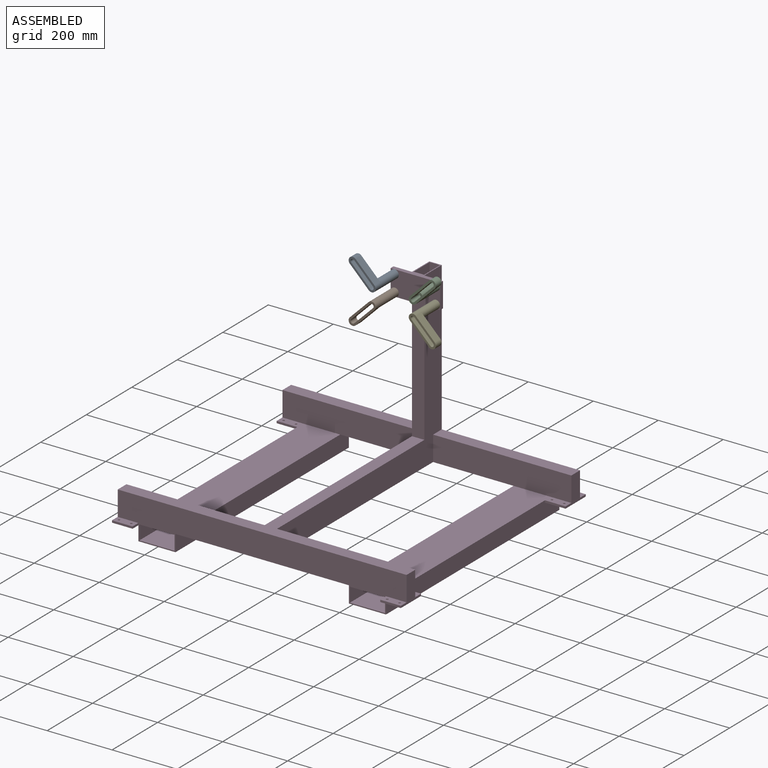
[diagram: assembled view]
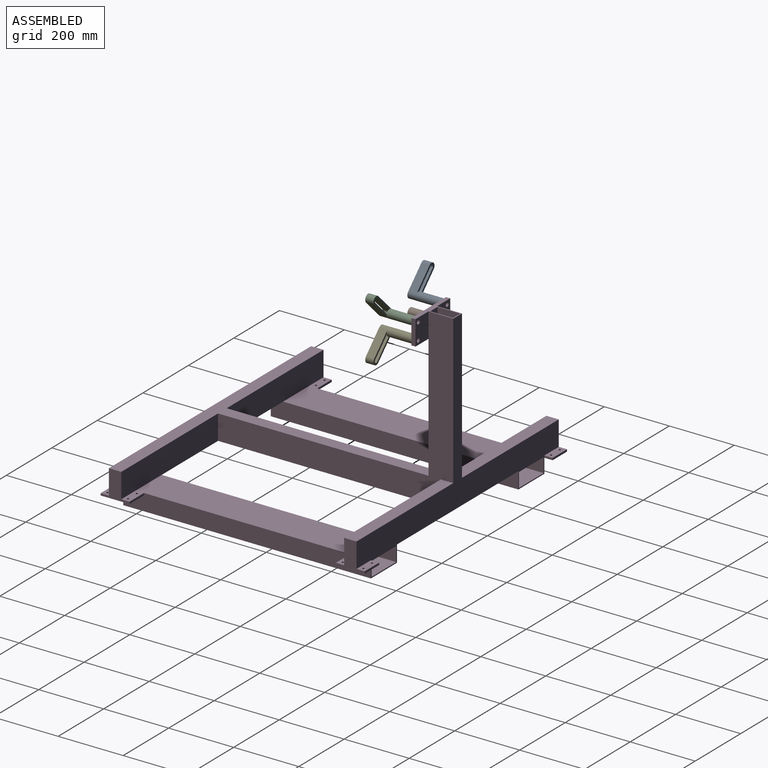
[diagram: assembled view, second angle]
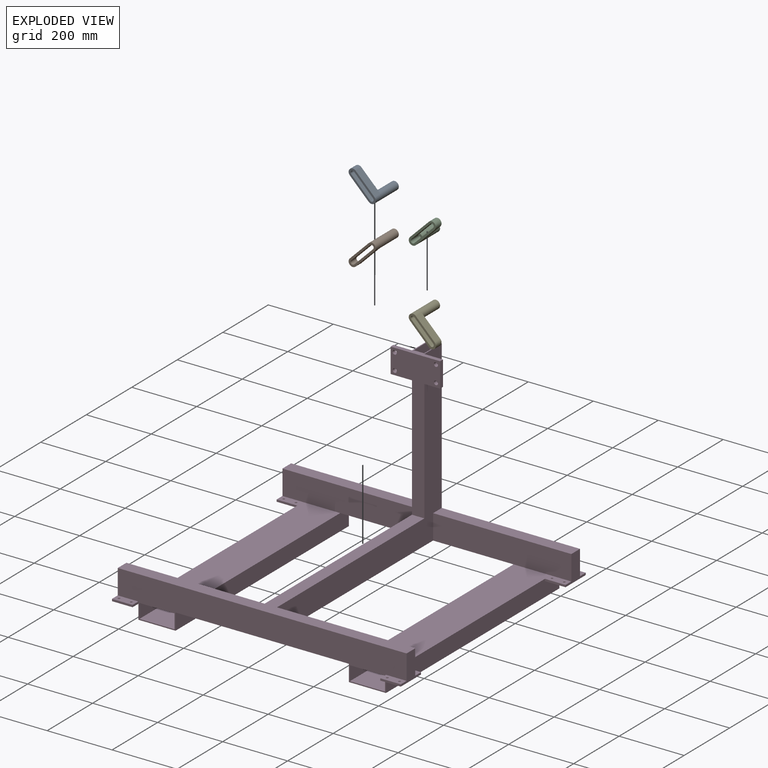
[diagram: exploded view]
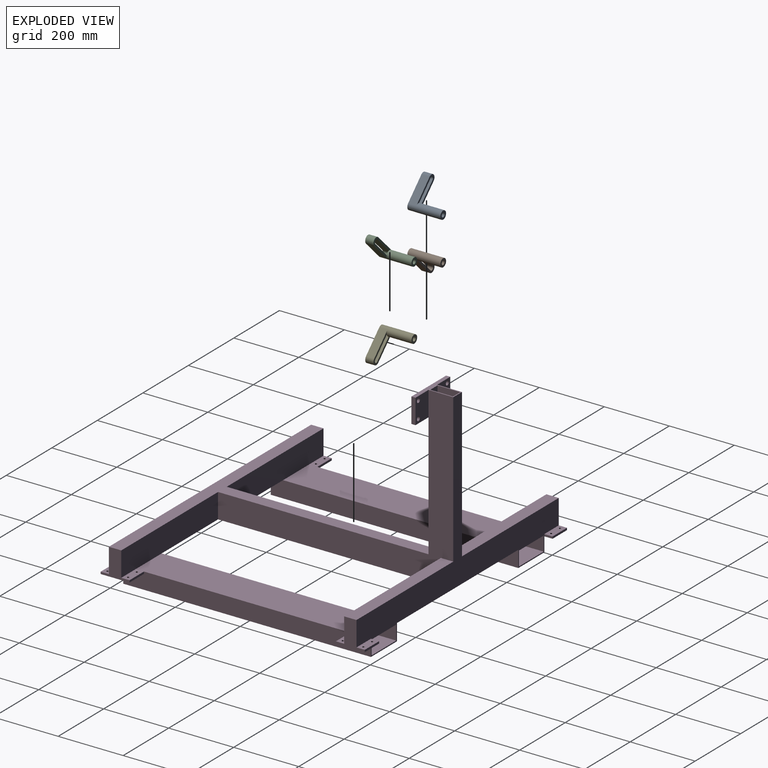
[diagram: exploded view, second angle]
ASSEMBLY  parts=5 mates=4
PART A: 14 faces, bbox 107.4x101.6x25.4 mm
  f0: plane 12.7x12.7mm, normal (0,-1,0), area 91mm2, adj f1,f2,f9,f11
  f1: cylinder r=6.35mm len=101.6mm, axis (0,-1,0), area 3547mm2, adj f0,f3,f9,f11,f13
  f2: cylinder r=12.7mm len=76.2mm, axis (0,-1,0), area 6080.5mm2, adj f0,f3,f4,f5
  f3: plane 25.4x25.4mm, normal (0,1,0), area 380mm2, adj f1,f2
  f4: plane 25.4x14.3mm, normal (0,-1,0), area 4.3mm2, adj f2,f6,f7,f8
  f5: plane 93.05x25.2mm, normal (0,1,0), area 1112.5mm2, adj f2,f6,f8,f9,f10,f11,f12
  f6: plane 82.05x25.4mm, normal (0,0,1), area 2084.1mm2, adj f4,f5,f7,f12,f13
  f7: cylinder r=12.6mm len=25.4mm, axis (0,1,0), area 1005.3mm2, adj f4,f6,f8,f13
  f8: plane 82.05x25.4mm, normal (0,0,-1), area 2084.1mm2, adj f4,f5,f7,f12,f13
  f9: plane 82.05x25.4mm, normal (0,0,-1), area 2084.1mm2, adj f0,f1,f5,f10,f13
  f10: cylinder r=6.35mm len=25.4mm, axis (0,1,0), area 506.7mm2, adj f5,f9,f11,f13
  f11: plane 82.05x25.4mm, normal (0,0,1), area 2084.1mm2, adj f0,f1,f5,f10,f13
  f12: cylinder r=12.6mm len=25.4mm, axis (0,1,0), area 1005.3mm2, adj f5,f6,f8,f13
  f13: plane 107.25x25.2mm, normal (0,-1,0), area 1397.3mm2, adj f1,f6,f7,f8,f9,f10,f11,f12
PART B: same geometry as A
PART C: same geometry as A
PART D: 85 faces, bbox 889x812.8x584.2 mm
  f0: plane 425.45x38.1mm, normal (0,0,1), area 16209.6mm2, adj f2,f9,f17,f18
  f1: plane 425.45x38.1mm, normal (0,0,1), area 16209.6mm2, adj f2,f10,f11,f12
  f2: plane 889x584.2mm, normal (0,1,0), area 87177.2mm2, adj f0,f1,f5,f6,f8,f9,f10,f12
  f3: plane 889x127mm, normal (0,-1,0), area 69757.9mm2, adj f4,f6,f7,f14,f15,f19,f28,f37
  f4: plane 25.4x6.35mm, normal (-1,0,0), area 161.3mm2, adj f3,f30,f36,f37
  f5: plane 25.4x6.35mm, normal (-1,0,0), area 161.3mm2, adj f2,f38,f39,f45
  f6: plane 762x533.4mm, normal (0,0,-1), area 66774.1mm2, adj f2,f3,f11,f12,f13,f16,f17,f18
  f7: plane 25.4x6.35mm, normal (1,0,0), area 161.3mm2, adj f3,f22,f27,f28
  f8: plane 25.4x6.35mm, normal (1,0,0), area 161.3mm2, adj f2,f46,f47,f53
  f9: plane 88.9x82.55mm, normal (1,0,0), area 3467.7mm2, adj f0,f2,f18,f29,f38,f39,f43,f45
  f10: plane 88.9x82.55mm, normal (-1,0,0), area 3467.7mm2, adj f1,f2,f11,f20,f46,f47,f48,f53
  f11: plane 425.45x76.2mm, normal (0,-1,0), area 32419.3mm2, adj f1,f6,f10,f12,f20
  f12: plane 723.9x533.4mm, normal (-1,0,0), area 87096.6mm2, adj f1,f2,f6,f11,f13,f19,f68,f73
  f13: plane 425.45x76.2mm, normal (0,1,0), area 32419.3mm2, adj f6,f12,f14,f19,f20
  f14: plane 88.9x82.55mm, normal (-1,0,0), area 3467.7mm2, adj f3,f13,f19,f20,f21,f22,f27,f28
  f15: plane 88.9x82.55mm, normal (1,0,0), area 3467.7mm2, adj f3,f16,f19,f29,f30,f31,f36,f37
  f16: plane 425.45x76.2mm, normal (0,1,0), area 32419.3mm2, adj f6,f15,f17,f19,f29
  f17: plane 723.9x533.4mm, normal (1,0,0), area 87096.6mm2, adj f0,f2,f6,f16,f18,f19,f68,f73
  f18: plane 425.45x76.2mm, normal (0,-1,0), area 32419.3mm2, adj f0,f6,f9,f17,f29
  f19: plane 889x685.8mm, normal (0,0,1), area 58548.3mm2, adj f3,f12,f13,f14,f15,f16,f17,f68
  f20: plane 685.8x177.8mm, normal (0,0,1), area 81486.1mm2, adj f10,f11,f13,f14,f21,f23,f26,f48
  f21: plane 63.5x6.35mm, normal (0,1,0), area 403.2mm2, adj f14,f20,f27,f54
  f22: plane 63.5x6.35mm, normal (0,-1,0), area 403.2mm2, adj f7,f14,f27,f28
  f23: cylinder r=3.17mm len=6.35mm, axis (0,0,1), area 126.7mm2, adj f20,f27
  f24: cylinder r=3.17mm len=6.35mm, axis (0,0,1), area 126.7mm2, adj f27,f28
  f25: cylinder r=3.17mm len=6.35mm, axis (0,0,1), area 126.7mm2, adj f27,f28
  f26: cylinder r=3.17mm len=6.35mm, axis (0,0,1), area 126.7mm2, adj f20,f27
  f27: plane 88.9x63.5mm, normal (0,0,-1), area 5518.5mm2, adj f7,f14,f21,f22,f23,f24,f25,f26
  f28: plane 63.5x25.4mm, normal (0,0,1), area 1549.6mm2, adj f3,f7,f14,f22,f24,f25
  f29: plane 685.8x177.8mm, normal (0,0,1), area 81486.1mm2, adj f9,f15,f16,f18,f31,f32,f35,f40
  f30: plane 63.5x6.35mm, normal (0,-1,0), area 403.2mm2, adj f4,f15,f36,f37
  f31: plane 63.5x6.35mm, normal (0,1,0), area 403.2mm2, adj f15,f29,f36,f57
  f32: cylinder r=3.17mm len=6.35mm, axis (0,0,1), area 126.7mm2, adj f29,f36
  f33: cylinder r=3.17mm len=6.35mm, axis (0,0,1), area 126.7mm2, adj f36,f37
  f34: cylinder r=3.17mm len=6.35mm, axis (0,0,1), area 126.7mm2, adj f36,f37
  f35: cylinder r=3.17mm len=6.35mm, axis (0,0,1), area 126.7mm2, adj f29,f36
  f36: plane 88.9x63.5mm, normal (0,0,-1), area 5518.5mm2, adj f4,f15,f30,f31,f32,f33,f34,f35
  f37: plane 63.5x25.4mm, normal (0,0,1), area 1549.6mm2, adj f3,f4,f15,f30,f33,f34
  f38: plane 63.5x25.4mm, normal (0,0,1), area 1549.6mm2, adj f2,f5,f9,f39,f41,f42
  f39: plane 63.5x6.35mm, normal (0,1,0), area 403.2mm2, adj f5,f9,f38,f45
  f40: cylinder r=3.17mm len=6.35mm, axis (0,0,1), area 126.7mm2, adj f29,f45
  f41: cylinder r=3.17mm len=6.35mm, axis (0,0,1), area 126.7mm2, adj f38,f45
  f42: cylinder r=3.17mm len=6.35mm, axis (0,0,1), area 126.7mm2, adj f38,f45
  f43: plane 63.5x6.35mm, normal (0,-1,0), area 403.2mm2, adj f9,f29,f45,f57
  f44: cylinder r=3.17mm len=6.35mm, axis (0,0,1), area 126.7mm2, adj f29,f45
  f45: plane 88.9x63.5mm, normal (0,0,-1), area 5518.5mm2, adj f5,f9,f39,f40,f41,f42,f43,f44
  f46: plane 63.5x25.4mm, normal (0,0,1), area 1549.6mm2, adj f2,f8,f10,f47,f50,f51
  f47: plane 63.5x6.35mm, normal (0,1,0), area 403.2mm2, adj f8,f10,f46,f53
  f48: plane 63.5x6.35mm, normal (0,-1,0), area 403.2mm2, adj f10,f20,f53,f54
  f49: cylinder r=3.17mm len=6.35mm, axis (0,0,1), area 126.7mm2, adj f20,f53
  f50: cylinder r=3.17mm len=6.35mm, axis (0,0,1), area 126.7mm2, adj f46,f53
  f51: cylinder r=3.17mm len=6.35mm, axis (0,0,1), area 126.7mm2, adj f46,f53
  f52: cylinder r=3.17mm len=6.35mm, axis (0,0,1), area 126.7mm2, adj f20,f53
  f53: plane 88.9x63.5mm, normal (0,0,-1), area 5518.5mm2, adj f8,f10,f47,f48,f49,f50,f51,f52
  f54: plane 762x50.8mm, normal (-1,0,0), area 37903.1mm2, adj f2,f3,f20,f21,f27,f48,f53,f56
  f55: plane 762x50.8mm, normal (1,0,0), area 38709.6mm2, adj f2,f3,f6,f20,f56
  f56: plane 762x114.3mm, normal (0,0,-1), area 87096.6mm2, adj f2,f3,f54,f55
  f57: plane 762x50.8mm, normal (1,0,0), area 37903.1mm2, adj f2,f3,f29,f31,f36,f43,f45,f59
  f58: plane 762x50.8mm, normal (-1,0,0), area 38709.6mm2, adj f2,f3,f6,f29,f59
  f59: plane 762x114.3mm, normal (0,0,-1), area 87096.6mm2, adj f2,f3,f57,f58
  f60: plane 762x107.95mm, normal (0,0,-1), area 82257.9mm2, adj f2,f3,f61,f63
  f61: plane 762x44.45mm, normal (1,0,0), area 33870.9mm2, adj f2,f3,f60,f62
  f62: plane 762x107.95mm, normal (0,0,1), area 82257.9mm2, adj f2,f3,f61,f63
  f63: plane 762x44.45mm, normal (-1,0,0), area 33870.9mm2, adj f2,f3,f60,f62
  f64: plane 762x44.45mm, normal (-1,0,0), area 33870.9mm2, adj f2,f3,f65,f67
  f65: plane 762x107.95mm, normal (0,0,-1), area 82257.9mm2, adj f2,f3,f64,f66
  f66: plane 762x44.45mm, normal (1,0,0), area 33870.9mm2, adj f2,f3,f65,f67
  f67: plane 762x107.95mm, normal (0,0,1), area 82257.9mm2, adj f2,f3,f64,f66
  f68: plane 381x38.1mm, normal (0,-1,0), area 14516.1mm2, adj f12,f17,f19,f79
  f69: plane 457.2x31.75mm, normal (0,-1,0), area 14516.1mm2, adj f70,f72,f73,f74
  f70: plane 457.2x69.85mm, normal (-1,0,0), area 31935.4mm2, adj f69,f71,f73,f74
  f71: plane 457.2x31.75mm, normal (0,1,0), area 14516.1mm2, adj f70,f72,f73,f74
  f72: plane 457.2x69.85mm, normal (1,0,0), area 31935.4mm2, adj f69,f71,f73,f74
  f73: plane 152.4x88.9mm, normal (0,0,1), area 2621mm2, adj f2,f12,f17,f69,f70,f71,f72,f75
  f74: plane 69.85x31.75mm, normal (0,0,1), area 2217.7mm2, adj f69,f70,f71,f72
  f75: plane 76.2x57.15mm, normal (0,1,0), area 4101.5mm2, adj f12,f73,f77,f78,f79,f82
  f76: plane 76.2x12.7mm, normal (1,0,0), area 967.7mm2, adj f73,f79,f83,f84
  f77: plane 76.2x12.7mm, normal (-1,0,0), area 967.7mm2, adj f73,f75,f79,f83
  f78: cylinder r=6.35mm len=12.7mm, axis (0,1,0), area 506.7mm2, adj f75,f83
  f79: plane 152.4x12.7mm, normal (0,0,-1), area 1935.5mm2, adj f68,f75,f76,f77,f83,f84
  f80: cylinder r=6.35mm len=12.7mm, axis (0,1,0), area 506.7mm2, adj f83,f84
  f81: cylinder r=6.35mm len=12.7mm, axis (0,1,0), area 506.7mm2, adj f83,f84
  f82: cylinder r=6.35mm len=12.7mm, axis (0,1,0), area 506.7mm2, adj f75,f83
  f83: plane 152.4x76.2mm, normal (0,-1,0), area 11106.2mm2, adj f73,f76,f77,f78,f79,f80,f81,f82
  f84: plane 76.2x57.15mm, normal (0,1,0), area 4101.5mm2, adj f17,f73,f76,f79,f80,f81
PART E: same geometry as A
PLACE A rot(axis=(0,-1,0),135deg) t=(-648.23,-165.38,586.72)mm
PLACE B rot(axis=(0,1,0),135deg) t=(-648.23,-165.38,535.92)mm
PLACE C rot(axis=(0,-1,0),45deg) t=(-521.23,-165.38,586.72)mm
PLACE D t=(-584.73,-381.28,66.02)mm
PLACE E rot(axis=(0,1,0),45deg) t=(-521.23,-165.38,535.92)mm
MATE revolute D.f82 <-> A.f2  axis (0,-1,0) through (-648.23,-89.18,586.72)mm
MATE revolute D.f80 <-> E.f2  axis (0,1,0) through (-521.23,-89.18,535.92)mm
MATE revolute D.f78 <-> B.f2  axis (0,1,0) through (-648.23,-89.18,535.92)mm
MATE revolute D.f81 <-> C.f2  axis (0,1,0) through (-521.23,-89.18,586.72)mm
